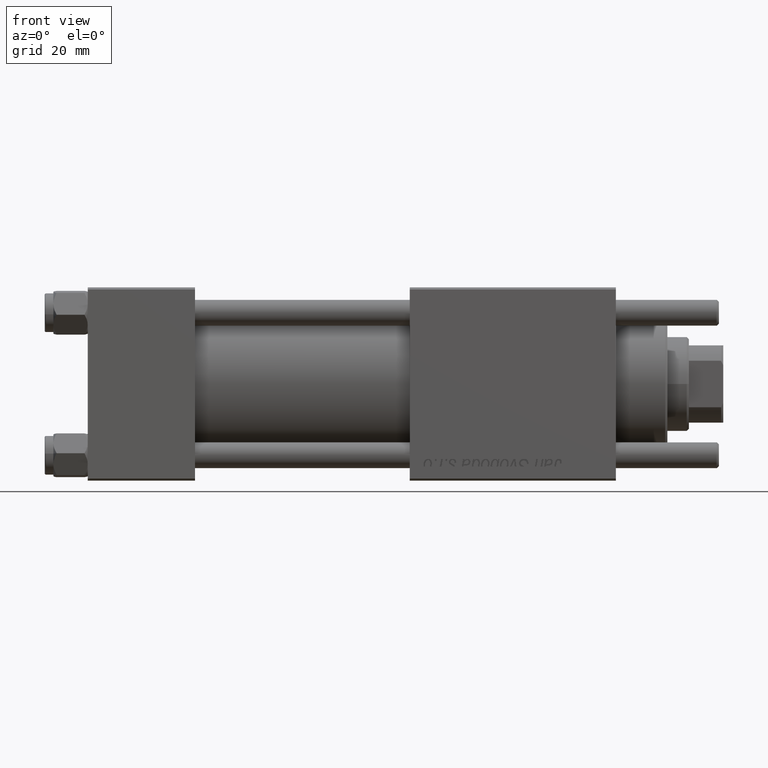
[diagram: clean part render]
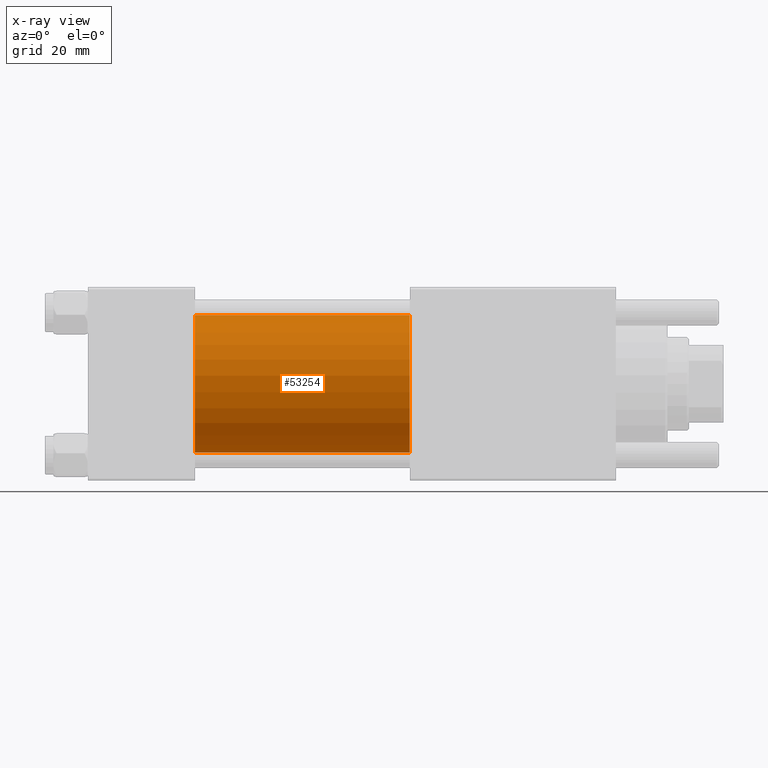
[diagram: x-ray — body ghosted, one internal face saturated and labeled with its STEP entity id]
A machine part, front view, then the same camera in x-ray: the body is ghosted and one INTERNAL B-rep face — a face not visible from any outside direction — is saturated and labeled: STEP entity #53254.
In plain terms, the highlighted cylindrical surface (partial cylindrical patch) has radius 16 mm, axis along (-1, -0, -0).
Its self-contained STEP definition (entity closure, byte-faithful):
#1608 = EDGE_CURVE ( 'NONE', #51138, #52313, #41246, .T. ) ;
#3326 = AXIS2_PLACEMENT_3D ( 'NONE', #7319, #42383, #55608 ) ;
#3602 = DIRECTION ( 'NONE',  ( 1.000000000000000000, 0.000000000000000000, 0.000000000000000000 ) ) ;
#3877 = ORIENTED_EDGE ( 'NONE', *, *, #34327, .F. ) ;
#5884 = DIRECTION ( 'NONE',  ( -1.000000000000000000, -0.000000000000000000, -0.000000000000000000 ) ) ;
#7319 = CARTESIAN_POINT ( 'NONE',  ( 75.00000000000001421, -2.602085213965210642E-15, 0.000000000000000000 ) ) ;
#7477 = CARTESIAN_POINT ( 'NONE',  ( 75.00000000000001421, -2.602085213965210642E-15, 16.00000000000000000 ) ) ;
#7755 = LINE ( 'NONE', #7477, #9797 ) ;
#8109 = EDGE_LOOP ( 'NONE', ( #52941, #18482, #3877, #24218 ) ) ;
#8293 = AXIS2_PLACEMENT_3D ( 'NONE', #12226, #3602, #38672 ) ;
#9797 = VECTOR ( 'NONE', #30160, 1000.000000000000000 ) ;
#10724 = VECTOR ( 'NONE', #5884, 1000.000000000000000 ) ;
#10749 = VERTEX_POINT ( 'NONE', #43059 ) ;
#11426 = CARTESIAN_POINT ( 'NONE',  ( 25.00000000000000000, -2.602085213965210642E-15, 16.00000000000000000 ) ) ;
#12226 = CARTESIAN_POINT ( 'NONE',  ( 75.00000000000001421, -2.602085213965210642E-15, 0.000000000000000000 ) ) ;
#12263 = DIRECTION ( 'NONE',  ( 1.000000000000000000, 0.000000000000000000, 0.000000000000000000 ) ) ;
#13941 = CIRCLE ( 'NONE', #47919, 16.00000000000000000 ) ;
#16536 = EDGE_CURVE ( 'NONE', #10749, #51138, #27600, .T. ) ;
#18482 = ORIENTED_EDGE ( 'NONE', *, *, #1608, .T. ) ;
#20981 = CARTESIAN_POINT ( 'NONE',  ( 25.00000000000000000, -6.426503353294456087E-16, -16.00000000000000000 ) ) ;
#24218 = ORIENTED_EDGE ( 'NONE', *, *, #54852, .F. ) ;
#26077 = CARTESIAN_POINT ( 'NONE',  ( 25.00000000000000000, -2.602085213965210642E-15, 0.000000000000000000 ) ) ;
#27600 = CIRCLE ( 'NONE', #8293, 16.00000000000000000 ) ;
#29169 = CYLINDRICAL_SURFACE ( 'NONE', #3326, 16.00000000000000000 ) ;
#30160 = DIRECTION ( 'NONE',  ( -1.000000000000000000, -0.000000000000000000, -0.000000000000000000 ) ) ;
#34282 = VERTEX_POINT ( 'NONE', #11426 ) ;
#34327 = EDGE_CURVE ( 'NONE', #34282, #52313, #13941, .T. ) ;
#37516 = FACE_OUTER_BOUND ( 'NONE', #8109, .T. ) ;
#38672 = DIRECTION ( 'NONE',  ( 0.000000000000000000, 0.000000000000000000, -1.000000000000000000 ) ) ;
#41246 = LINE ( 'NONE', #45825, #10724 ) ;
#42383 = DIRECTION ( 'NONE',  ( -1.000000000000000000, -0.000000000000000000, -0.000000000000000000 ) ) ;
#43059 = CARTESIAN_POINT ( 'NONE',  ( 75.00000000000001421, -2.602085213965210642E-15, 16.00000000000000000 ) ) ;
#43315 = DIRECTION ( 'NONE',  ( 0.000000000000000000, 0.000000000000000000, -1.000000000000000000 ) ) ;
#45825 = CARTESIAN_POINT ( 'NONE',  ( 75.00000000000001421, -6.426503353294456087E-16, -16.00000000000000000 ) ) ;
#47919 = AXIS2_PLACEMENT_3D ( 'NONE', #26077, #12263, #43315 ) ;
#51138 = VERTEX_POINT ( 'NONE', #52148 ) ;
#52148 = CARTESIAN_POINT ( 'NONE',  ( 75.00000000000001421, -6.426503353294456087E-16, -16.00000000000000000 ) ) ;
#52313 = VERTEX_POINT ( 'NONE', #20981 ) ;
#52941 = ORIENTED_EDGE ( 'NONE', *, *, #16536, .T. ) ;
#53254 = ADVANCED_FACE ( 'NONE', ( #37516 ), #29169, .F. ) ;
#54852 = EDGE_CURVE ( 'NONE', #10749, #34282, #7755, .T. ) ;
#55608 = DIRECTION ( 'NONE',  ( 0.000000000000000000, 0.000000000000000000, 1.000000000000000000 ) ) ;